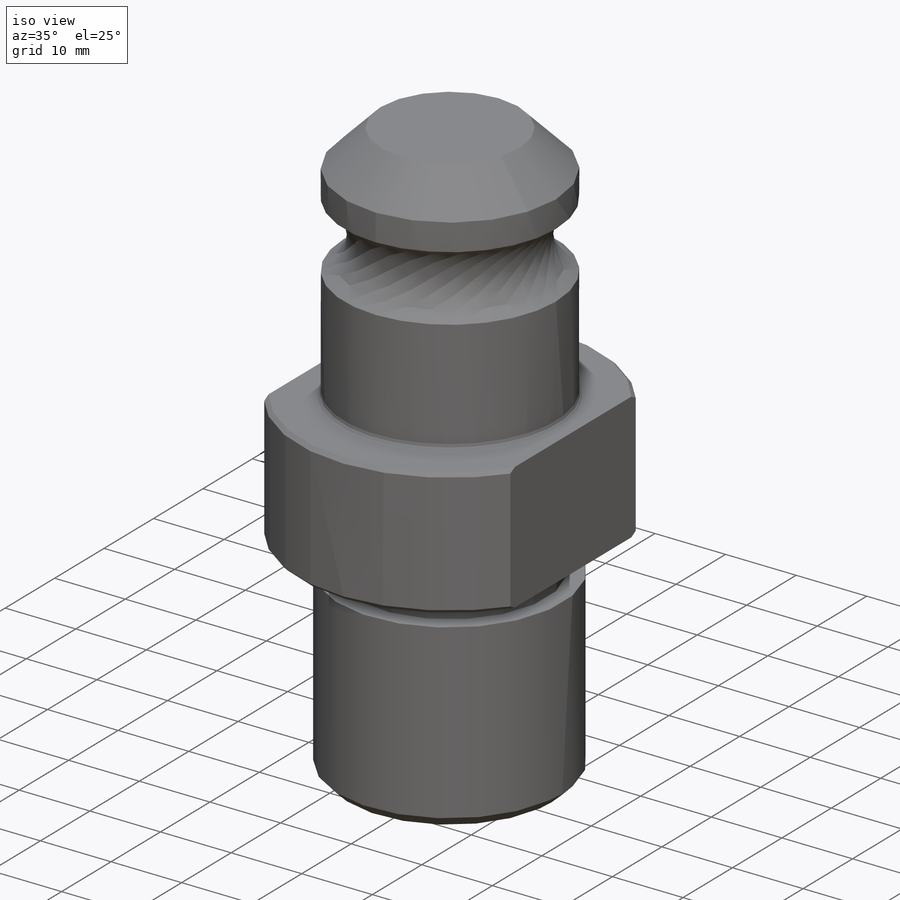
[diagram: iso view]
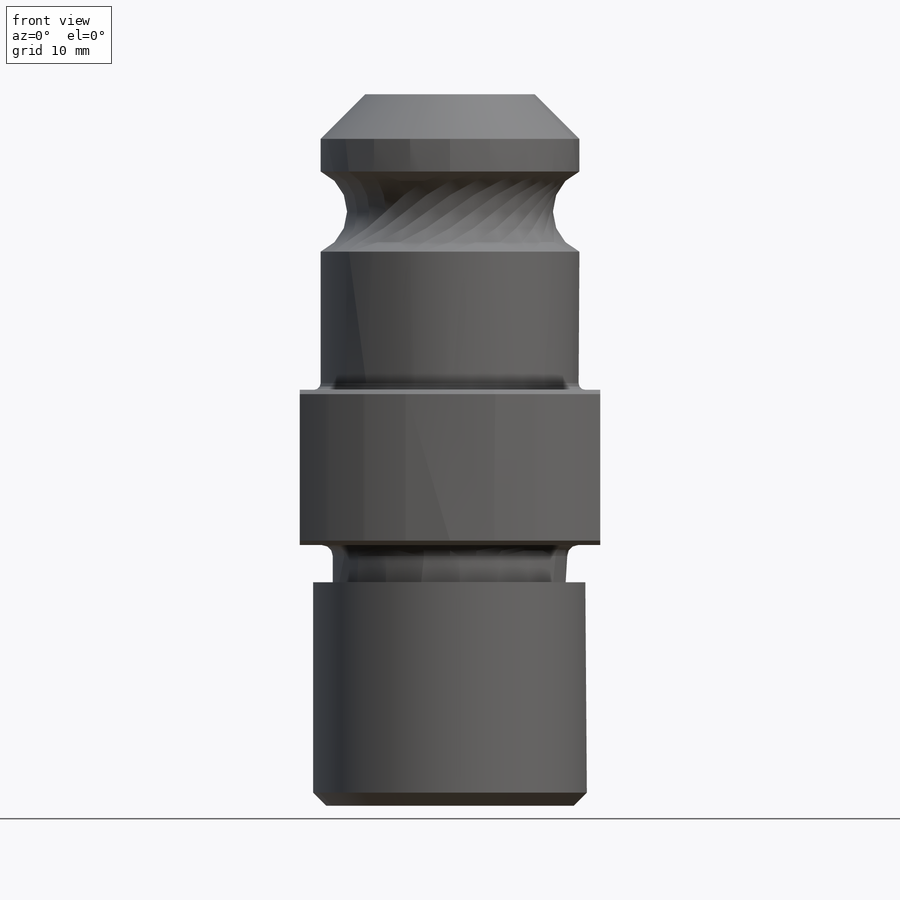
[diagram: front view]
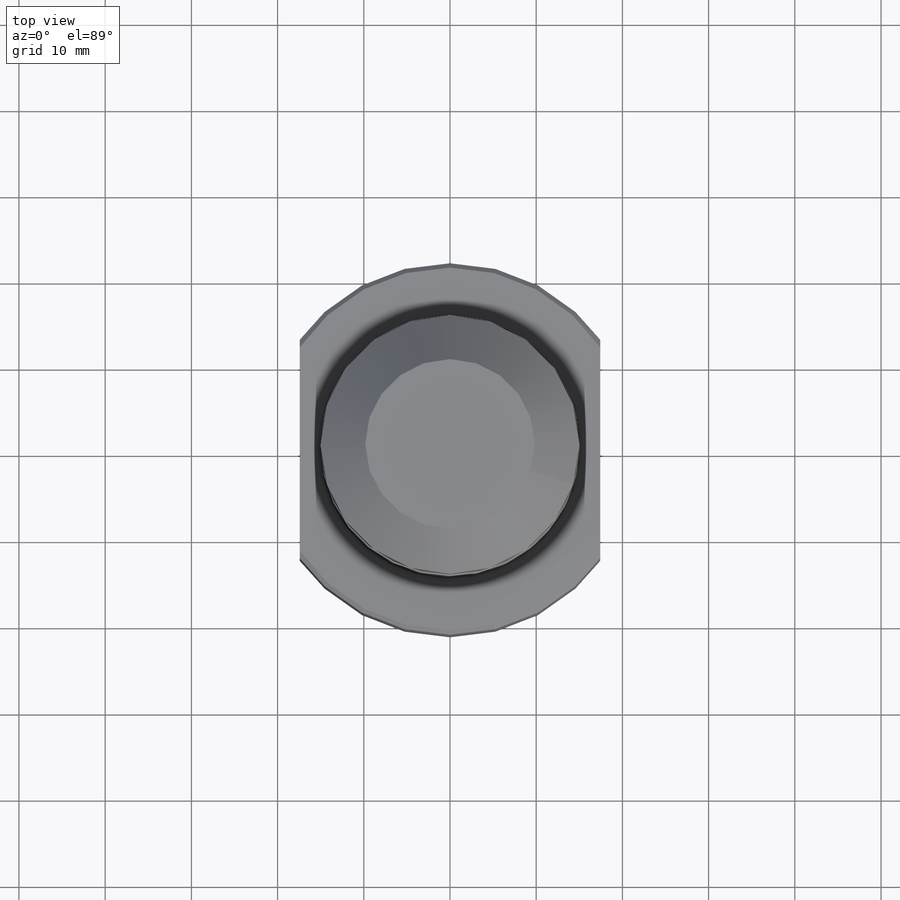
[diagram: top view]
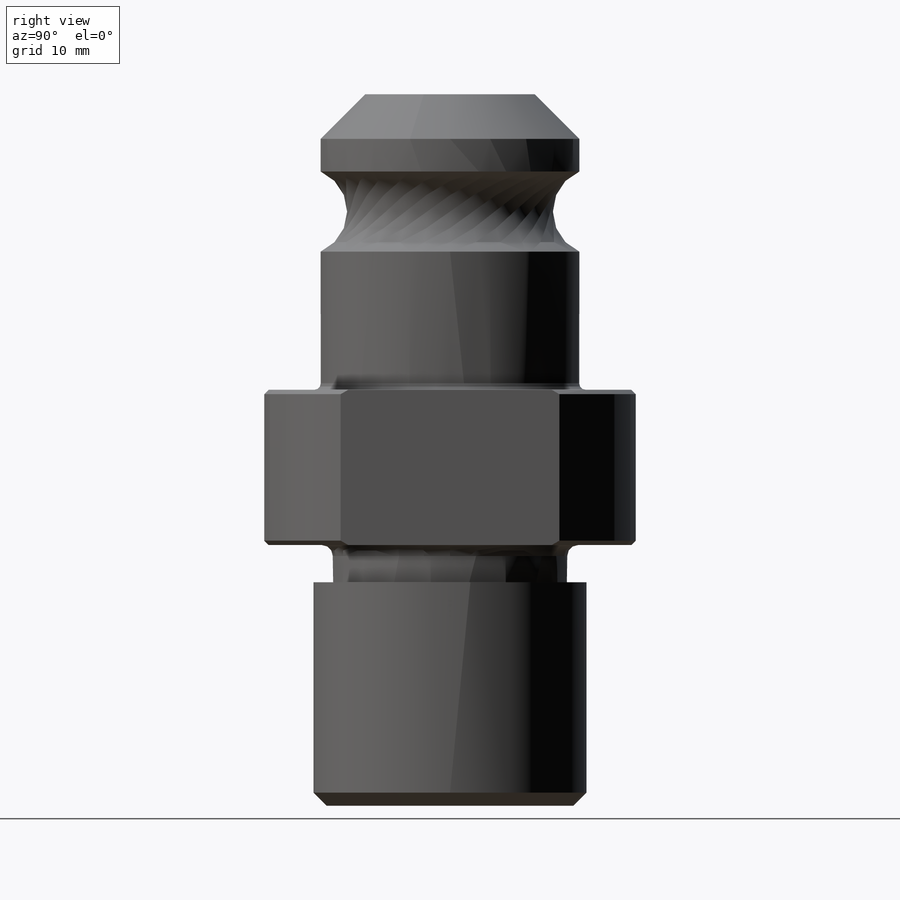
[diagram: right view]
SOLIDWORKS PART (.sldprt)
format: sldprt  version: not decoded by parser v0  size: 292,352 bytes
history: native  units: mm
features: sketch x2, chamfer x2, material x1, revolve x1, cut_extrude x1, fillet x1 (+13 scaffold rows collapsed)
feature tree (21):
  scaffold x13  (default folders/planes/origin — collapsed)
  material  "Material <not specified>"
  sketch  "Sketch1"  dims[c1.D13=~4.22757mm c1.D14=1.27mm c1.D15=~5.051661mm c1.D1=31.75mm c1.D2=27.2034mm c1.D3=43.1038mm c1.D4=30.0228mm c1.D5=30.2514mm c1.D6=18.0086mm c1.D7=4.318mm c1.D8=~3.239158mm c2.D8=45.0deg c2.D9=19.6596mm c2.D10=34.29mm c2.D11=16.0274mm c2.D12=9.2964mm c2.D13=23.876mm c3.D10=34.29mm]
  revolve  "Revolve1"  Angle=360deg
  chamfer  "Chamfer1"  Distance=0.508mm Angle=45deg
  chamfer  "Chamfer2"  Distance=1.524mm Angle=45deg
  sketch  "Sketch2"  dims[D1=17.4244mm D2=17.4244mm]
  cut_extrude  "Cut-Extrude1"  [1 undecoded]
  fillet  "Fillet1"  Radius=0.762mm
decode coverage: 6 of 7 modeling features carry decoded parameters
note: ~ marks probable driven/reference dimensions
note: 1 parameter value undecoded
note: suppression state not decoded; provenance and decode notes live in map.json
